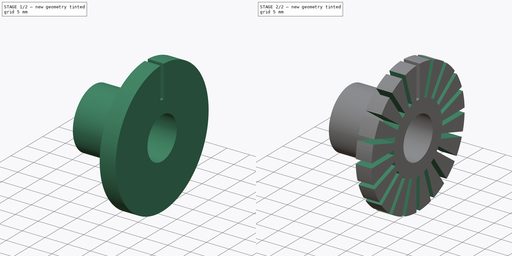
[diagram: build sequence overview — one tinted view per stage of 2, left to right]
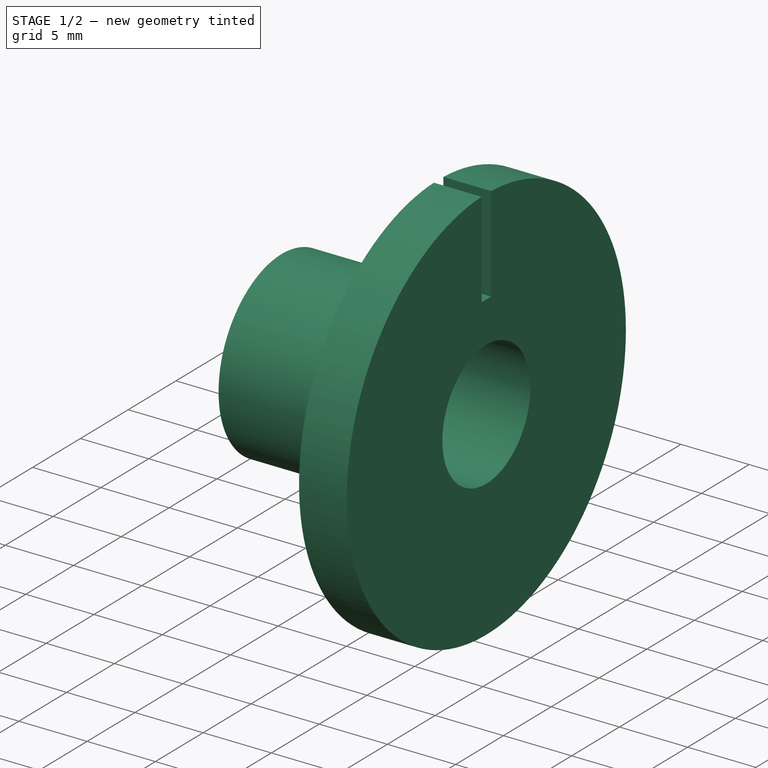
[diagram: stage 1 of 2 — iso view after this stage's code; geometry added in this stage tinted green]
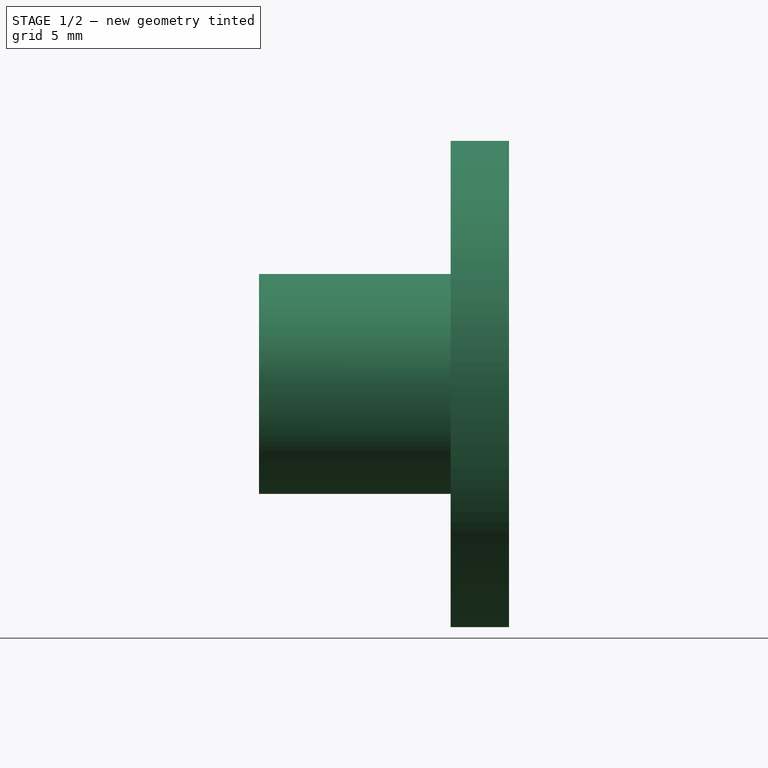
[diagram: stage 1 of 2 — front view after this stage's code; geometry added in this stage tinted green]
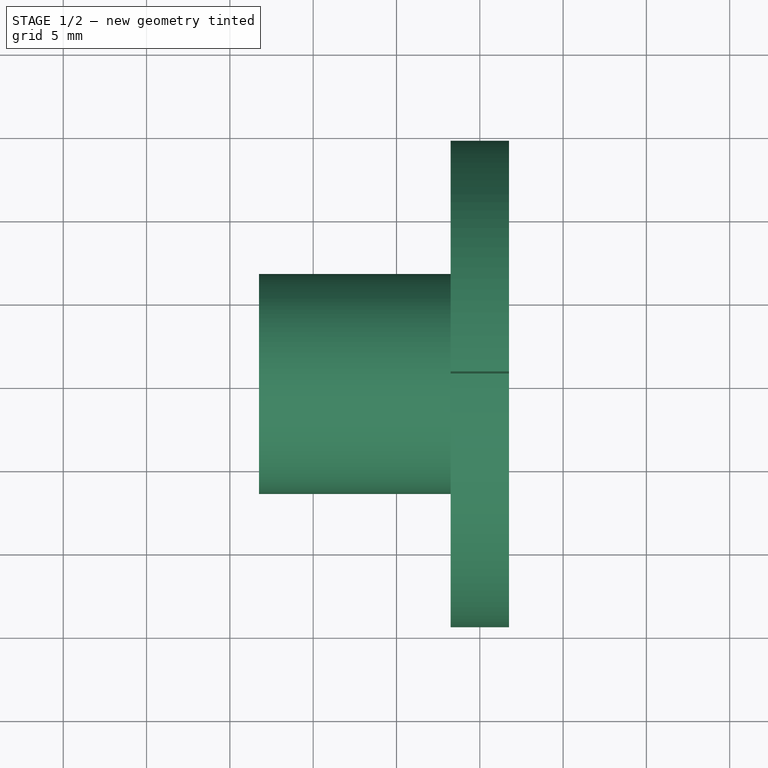
[diagram: stage 1 of 2 — top view after this stage's code; geometry added in this stage tinted green]
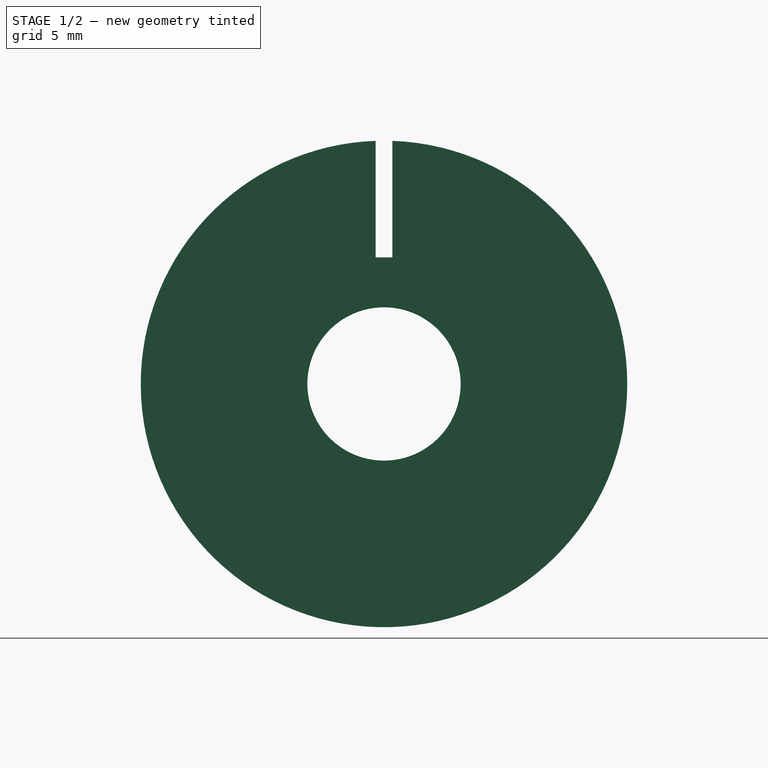
[diagram: stage 1 of 2 — right view after this stage's code; geometry added in this stage tinted green]
FCSTD DOCUMENT  (FreeCAD 0.20R29603 (Git))
Label: disco-M8-20P
License: All rights reserved
LicenseURL: http://en.wikipedia.org/wiki/All_rights_reserved
objects: Sketcher::SketchObject×3, PartDesign::Revolution×1, PartDesign::Pocket×1, PartDesign::Line×1, PartDesign::PolarPattern×1, PartDesign::Body×1
note: 10 computed .brp shape members not serialized (recipe doc carries the construction recipe); baked Part::Feature solids carry a one-line shape summary decoded from their .brp

FEATURE [Sketcher::SketchObject] Sketch
  FullyConstrained = true
  MapMode = 5
  Support = -> [XY_Plane]
  sketch-geometry (8):
    g0: LineSegment StartX=-13.25 StartY=0 StartZ=0 EndX=1.75 EndY=0 EndZ=0
    g1: LineSegment StartX=1.75 StartY=4.6 StartZ=0 EndX=1.75 EndY=14.6 EndZ=0
    g2: LineSegment StartX=1.75 StartY=14.6 StartZ=0 EndX=0 EndY=14.6 EndZ=0
    g3: LineSegment StartX=0 StartY=14.6 StartZ=0 EndX=-1.75 EndY=14.6 EndZ=0
    g4: LineSegment StartX=-1.75 StartY=14.6 StartZ=0 EndX=-1.75 EndY=6.6 EndZ=0
    g5: LineSegment StartX=-1.75 StartY=6.6 StartZ=0 EndX=-13.25 EndY=6.6 EndZ=0
    g6: LineSegment StartX=-13.25 StartY=6.6 StartZ=0 EndX=-13.25 EndY=4.6 EndZ=0
    g7: LineSegment StartX=-13.25 StartY=4.6 StartZ=0 EndX=1.75 EndY=4.6 EndZ=0
  constraints (25):
    c: PointOnObject(g0,g-1)
    c: PointOnObject(g0,g-1)
    c: Vertical(g6)
    c: Equal(g2,g3)
    c: PointOnObject(g2,g-2)
    c: Vertical(g0,g6)
    c: Vertical(g0,g7)
    c: DistanceX(g0,g0) = 15
    c: DistanceX(g3,g1) = 3.5
    c: DistanceY(g0,g1) = 4.6
    c: DistanceY(g6,g3) = 10
    c: Coincident(g5,g4)
    c: Coincident(g4,g3)
    c: Horizontal(g3)
    c: Vertical(g4)
    c: Coincident(g3,g2)
    c: Coincident(g2,g1)
    c: Horizontal(g2)
    c: Coincident(g6,g5)
    c: Horizontal(g5)
    c: Vertical(g1)
    c: Coincident(g7,g6)
    c: Coincident(g7,g1)
    c: Horizontal(g7)
    c: DistanceY(g6,g6) = 2
FEATURE [PartDesign::Revolution] Revolution
  Angle = 360
  Axis = (1,0,0)
  Base = (0,0,0)
  Profile = -> Sketch
  ReferenceAxis = -> X_Axis
FEATURE [Sketcher::SketchObject] Sketch001
  ExternalGeometry = -> [Revolution]
  FullyConstrained = true
  MapMode = 5
  Placement = pos=(-1.75,0,0) rot=(0.57735,-0.57735,-0.57735;2.0944rad)
  Support = -> [Revolution]
  sketch-geometry (7):
    g0: Circle CenterX=0 CenterY=0 CenterZ=0 NormalX=0 NormalY=0 NormalZ=1 AngleXU=0 Radius=7.6
    g1: LineSegment StartX=-0.5 StartY=15.6 StartZ=0 EndX=0.5 EndY=15.6 EndZ=0
    g2: LineSegment StartX=0.5 StartY=15.6 StartZ=0 EndX=0.5 EndY=7.6 EndZ=0
    g3: LineSegment StartX=-0.5 StartY=7.6 StartZ=0 EndX=-0.5 EndY=15.6 EndZ=0
    g4: LineSegment StartX=-0.5 StartY=7.6 StartZ=0 EndX=0 EndY=7.6 EndZ=0
    g5: LineSegment StartX=0.5 StartY=7.6 StartZ=0 EndX=0 EndY=7.6 EndZ=0
    g6: GeomPoint X=0 Y=6.6 Z=0
  constraints (19):
    c: Coincident(g1,g2)
    c: Coincident(g3,g1)
    c: Horizontal(g1)
    c: Vertical(g2)
    c: Vertical(g3)
    c: Coincident(g4,g3)
    c: Coincident(g5,g2)
    c: PointOnObject(g5,g-2)
    c: Coincident(g5,g4)
    c: PointOnObject(g4,g0)
    c: Horizontal(g4)
    c: Horizontal(g5)
    c: Equal(g5,g4)
    c: DistanceY(g3,g3) = 8
    c: Coincident(g0,g-1)
    c: PointOnObject(g6,g-3)
    c: PointOnObject(g6,g-2)
    c: DistanceY(g6,g4) = 1
    c: DistanceX(g1,g1) = 1
FEATURE [PartDesign::Pocket] Pocket
  BaseFeature = -> Revolution
  Direction = (1,0,0)
  Length = 0
  Length2 = 5
  Profile = -> Sketch001
  ReferenceAxis = -> Sketch001 [N_Axis]
  Type = 3
  UpToFace = -> Revolution [Face1]
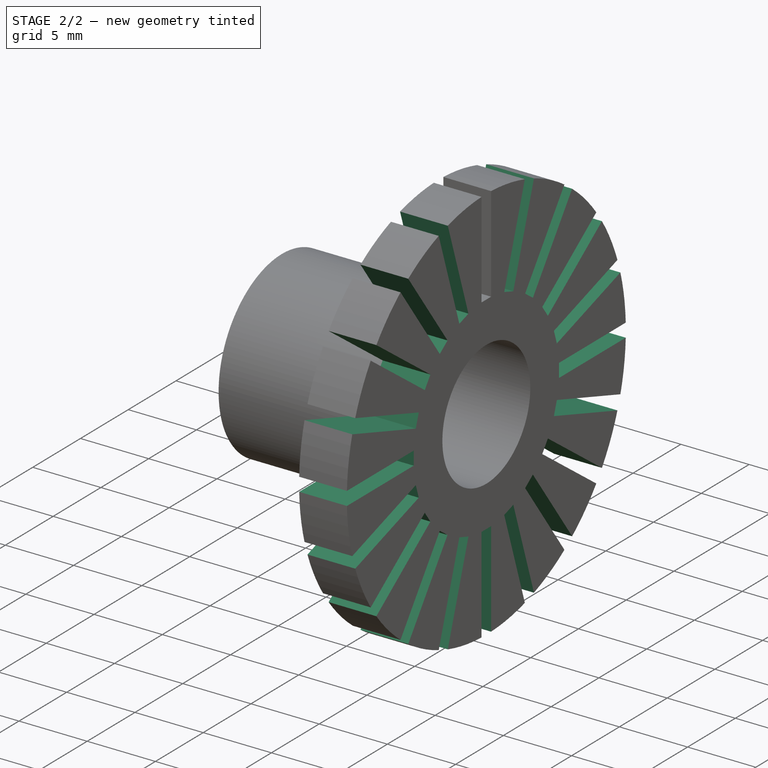
[diagram: stage 2 of 2 — iso view after this stage's code; geometry added in this stage tinted green]
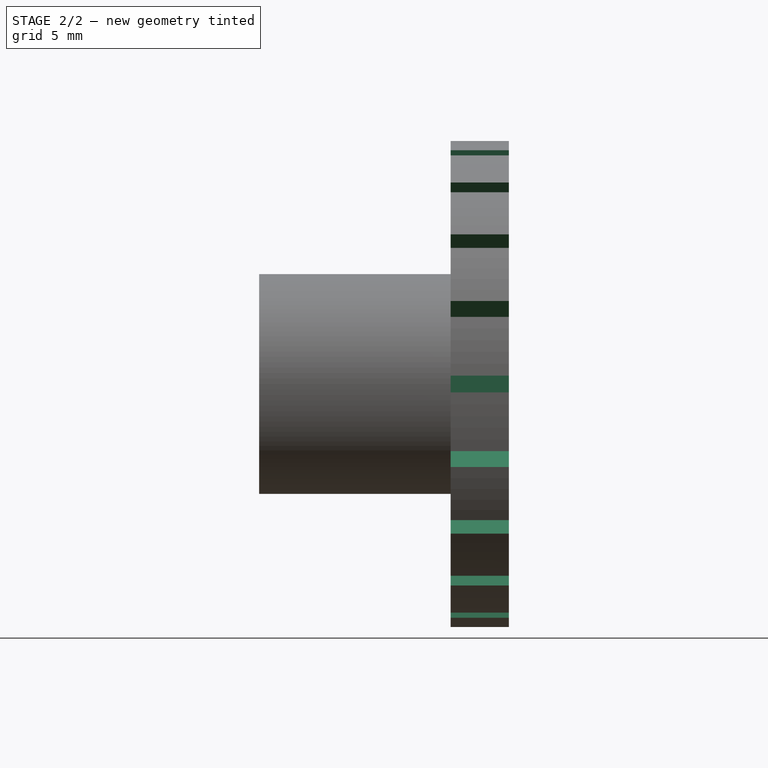
[diagram: stage 2 of 2 — front view after this stage's code; geometry added in this stage tinted green]
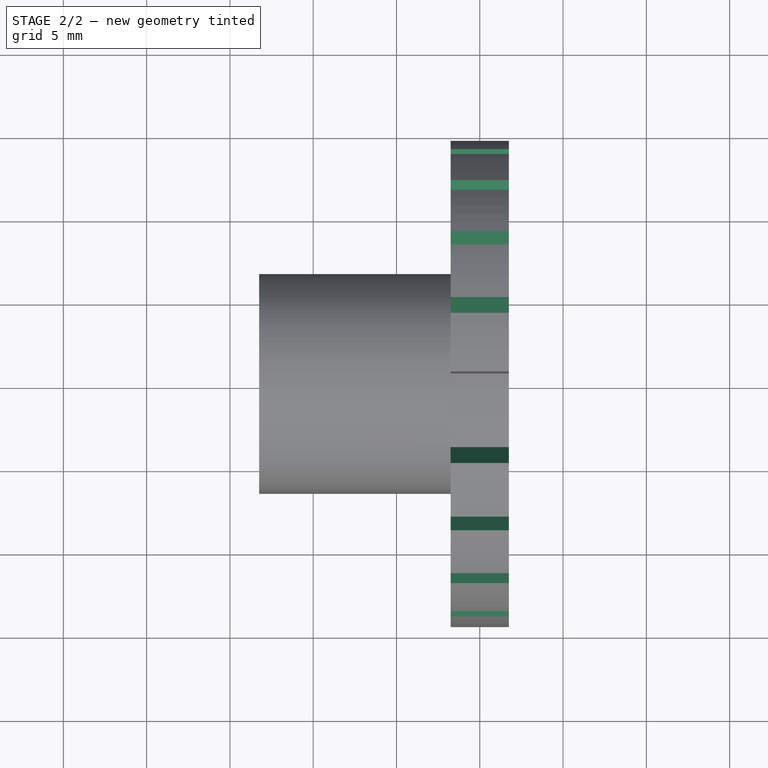
[diagram: stage 2 of 2 — top view after this stage's code; geometry added in this stage tinted green]
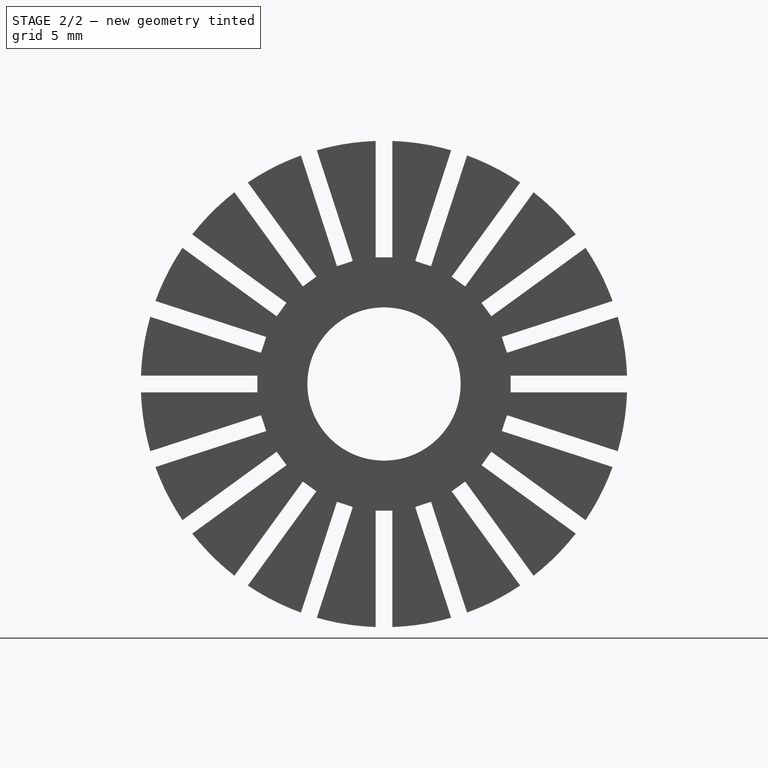
[diagram: stage 2 of 2 — right view after this stage's code; geometry added in this stage tinted green]
FEATURE [PartDesign::Line] DatumLine
  AttacherType = Attacher::AttachEngineLine
  Length = 20
  MapMode = 19
  Placement = pos=(-13.25,0,0) rot=(0.57735,0.57735,0.57735;2.0944rad)
  ResizeMode = 0
  Support = -> [Pocket]
FEATURE [PartDesign::PolarPattern] PolarPattern
  Angle = 360
  Axis = -> Sketch001 [N_Axis]
  BaseFeature = -> Pocket
  Occurrences = 20
  Originals = -> [Pocket]
FEATURE [Sketcher::SketchObject] Sketch002
  ExternalGeometry = -> [PolarPattern]
  FullyConstrained = true
  MapMode = 5
  Placement = pos=(1.75,0,0) rot=(0.57735,0.57735,0.57735;2.0944rad)
  Support = -> [PolarPattern]
  constraints (1):
    c: Diameter(g-3) = 9.2
FEATURE [PartDesign::Body] Body
  Group = -> [Sketch,Revolution,Sketch001,Pocket,DatumLine,PolarPattern,Sketch002]
  Origin = -> Origin
  Tip = -> PolarPattern
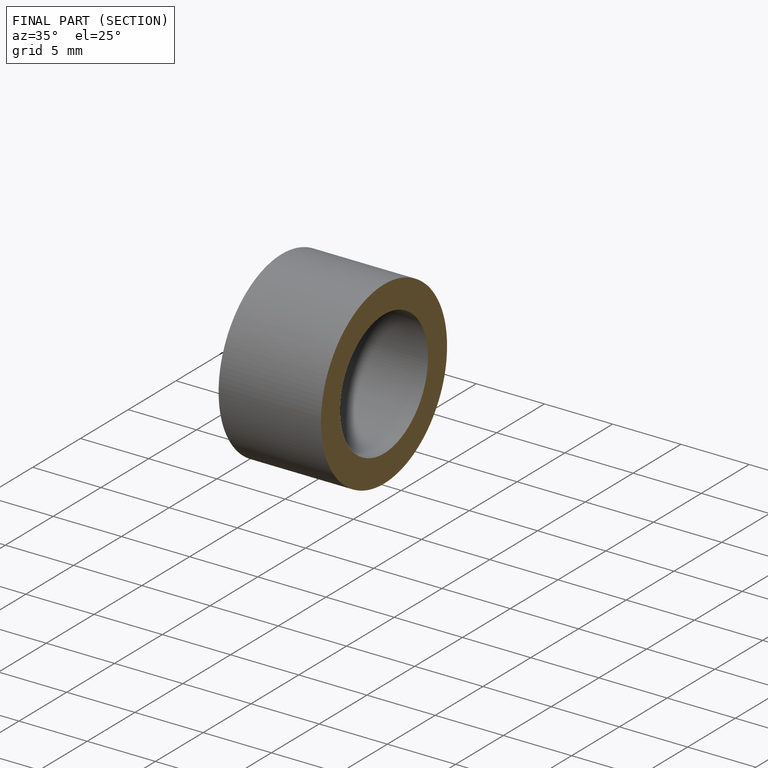
[diagram: finished part — half-section view (interior)]
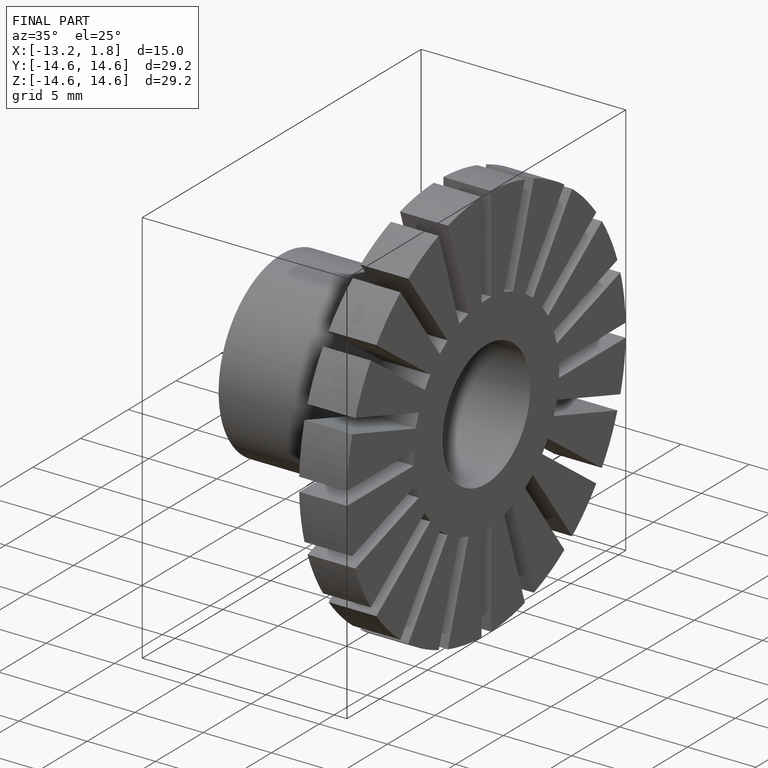
[diagram: finished part — iso view with bounding-box wireframe]
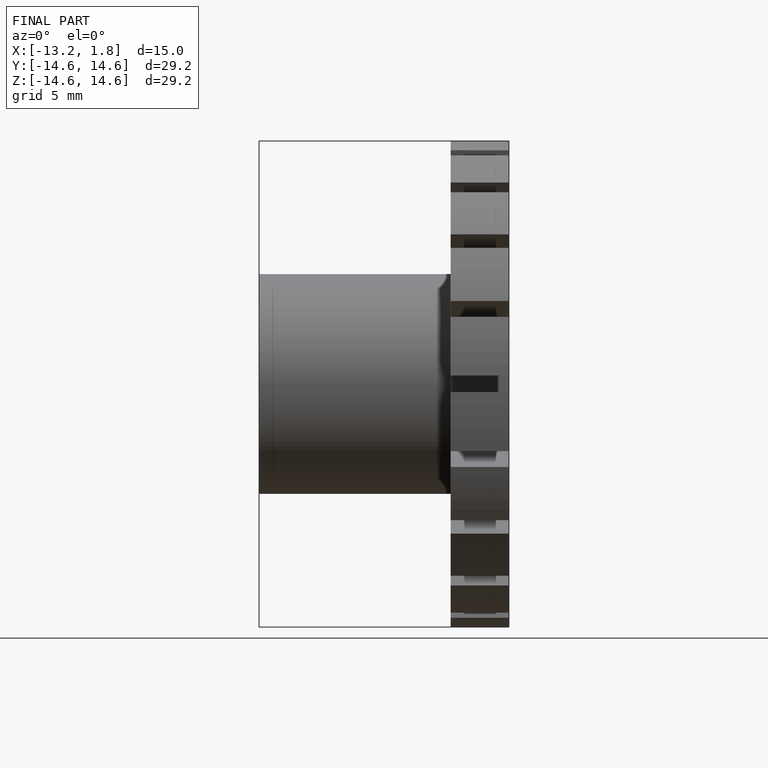
[diagram: finished part — front view with bounding-box wireframe]
